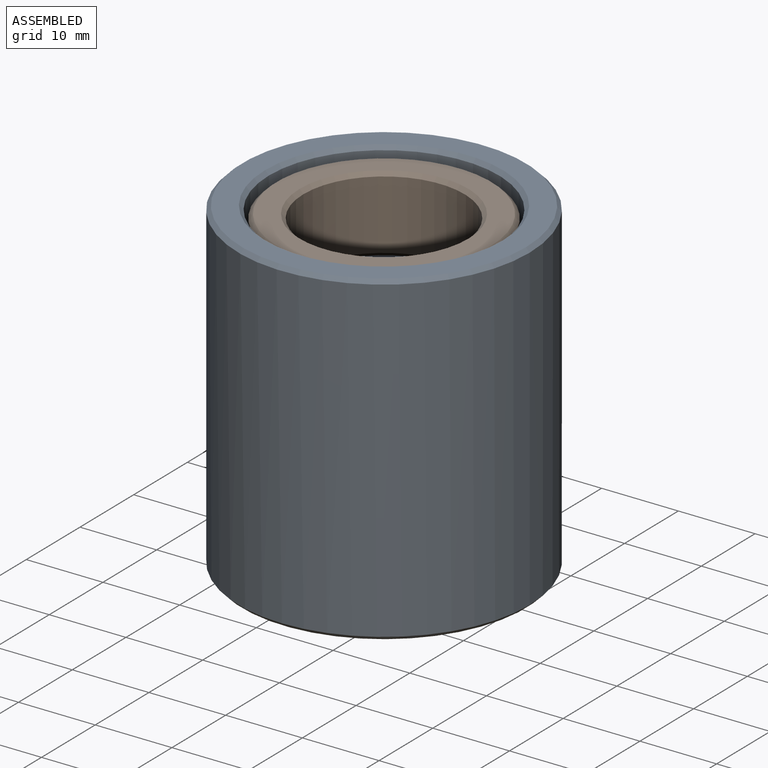
[diagram: assembled view]
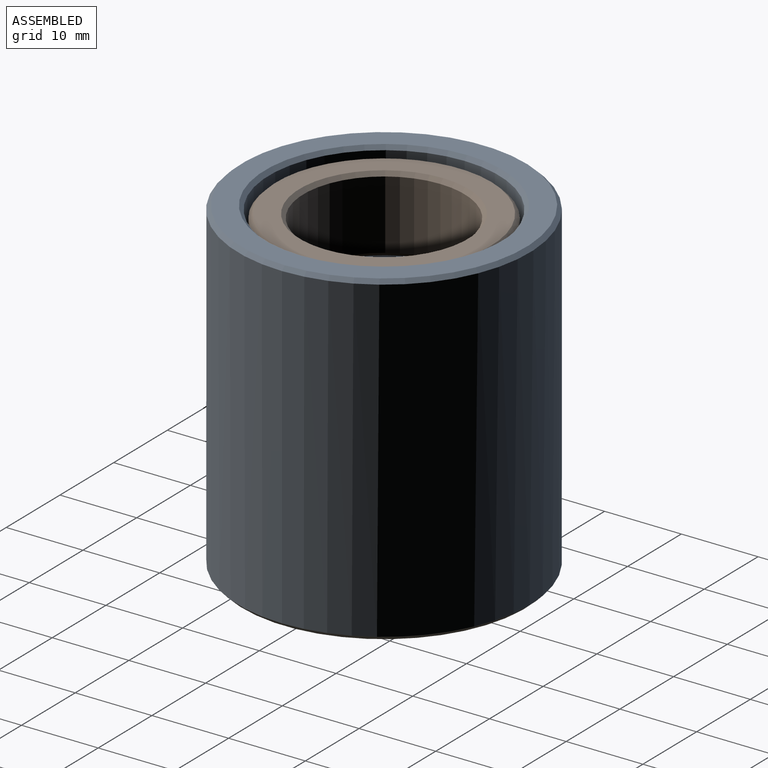
[diagram: assembled view, second angle]
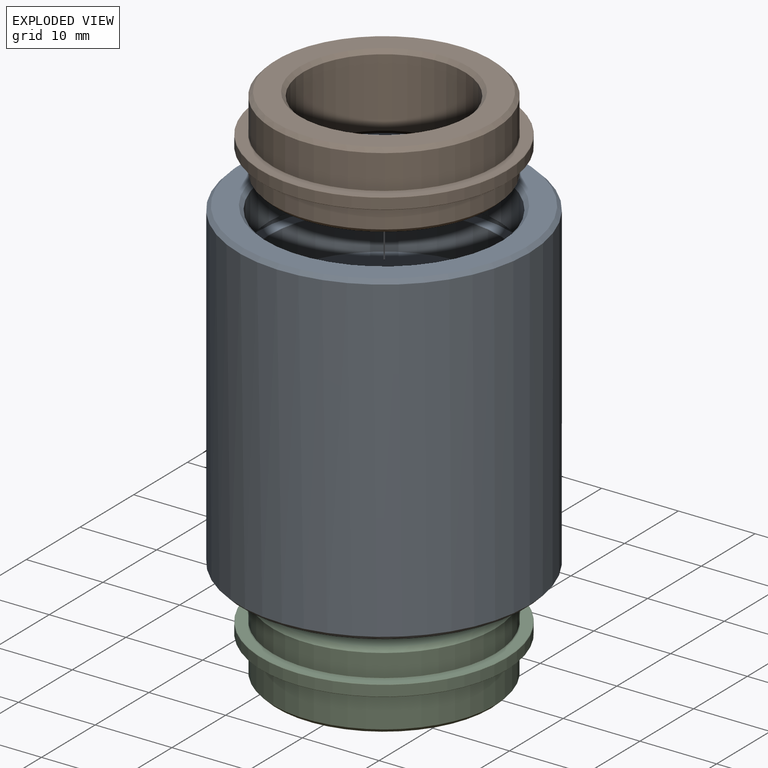
[diagram: exploded view]
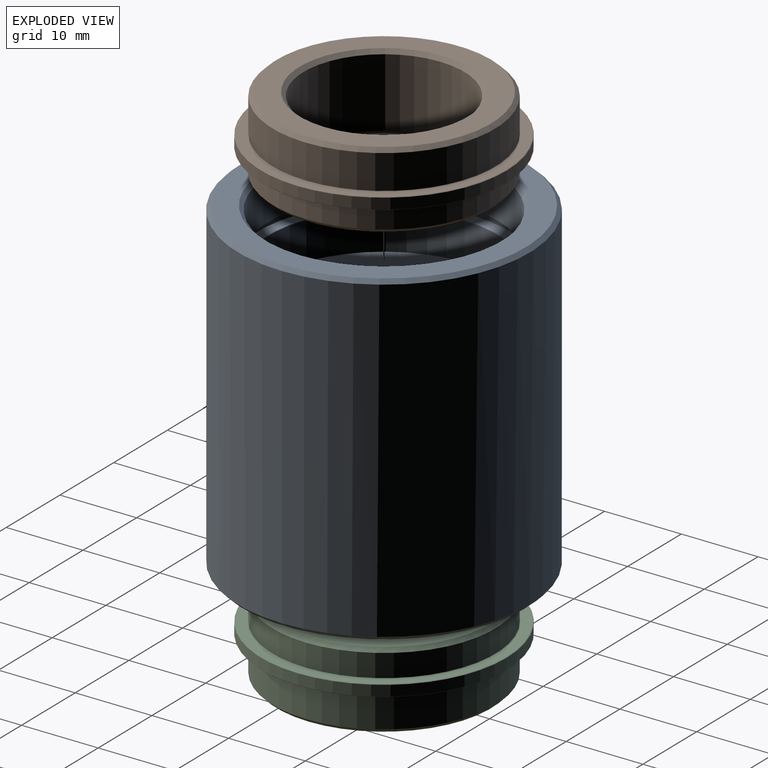
[diagram: exploded view, second angle]
ASSEMBLY  parts=3 mates=2
PART A: 28 faces, bbox 38x38x42.5 mm
  f0: plane 37x37mm, normal (0,0,1), area 320.4mm2, adj f20,f21
  f1: cylinder r=15mm len=30mm, axis (0,0,1), area 513.7mm2, adj f21,f22
  f2: plane 33x33mm, normal (0,0,-1), area 143.7mm2, adj f3,f22
  f3: cylinder r=16.5mm len=33mm, axis (0,0,1), area 155.5mm2, adj f2,f4
  f4: plane 33x33mm, normal (0,0,1), area 143.7mm2, adj f3,f23
  f5: cylinder r=15mm len=30mm, axis (0,0,1), area 461.8mm2, adj f23,f24
  f6: plane 29.9x29.9mm, normal (0,0,1), area 286.7mm2, adj f19,f24
  f7: cylinder r=11mm len=22mm, axis (0,0,1), area 1313.2mm2, adj f18,f19
  f8: plane 29.9x29.9mm, normal (0,0,-1), area 286.7mm2, adj f18,f27
  f9: cylinder r=15mm len=30mm, axis (0,0,1), area 320.4mm2, adj f26,f27
  f10: plane 33x33mm, normal (0,0,-1), area 143.7mm2, adj f11,f26
  f11: cylinder r=16.5mm len=33mm, axis (0,0,1), area 155.5mm2, adj f10,f12
  f12: plane 33x33mm, normal (0,0,1), area 143.7mm2, adj f11,f25
  f13: cylinder r=15mm len=30mm, axis (0,0,1), area 419.4mm2, adj f17,f25
  f14: plane 37x37mm, normal (0,0,-1), area 320.4mm2, adj f16,f17
  f15: cylinder r=19mm len=41.5mm, axis (0,0,1), area 4954.3mm2, adj f16,f20
  f16: cone r=19mm half-angle=45deg, axis (0,0,1), area 83.3mm2, adj f14,f15
  f17: cone r=15.5mm half-angle=45deg, axis (0,0,-1), area 67.8mm2, adj f13,f14
  f18: cone r=11.5mm half-angle=45deg, axis (0,0,-1), area 50mm2, adj f7,f8
  f19: cone r=11mm half-angle=45deg, axis (0,0,1), area 50mm2, adj f6,f7
  f20: cone r=18.5mm half-angle=45deg, axis (0,0,-1), area 83.3mm2, adj f0,f15
  f21: cone r=15mm half-angle=45deg, axis (0,0,1), area 67.8mm2, adj f0,f1
  f22: cone r=15.05mm half-angle=45deg, axis (0,0,-1), area 6.7mm2, adj f1,f2
  f23: cone r=15mm half-angle=45deg, axis (0,0,1), area 6.7mm2, adj f4,f5
  f24: cone r=14.95mm half-angle=45deg, axis (0,0,1), area 6.7mm2, adj f5,f6
  f25: cone r=15mm half-angle=45deg, axis (0,0,1), area 6.7mm2, adj f12,f13
  f26: cone r=15.05mm half-angle=45deg, axis (0,0,-1), area 6.7mm2, adj f9,f10
  f27: cone r=15mm half-angle=45deg, axis (0,0,-1), area 6.7mm2, adj f8,f9
PART B: 16 faces, bbox 32x32x10 mm
  f0: plane 28x28mm, normal (0,0,1), area 235.6mm2, adj f13,f14
  f1: cylinder r=10.5mm len=21mm, axis (0,0,1), area 593.8mm2, adj f12,f13
  f2: plane 28x28mm, normal (0,0,-1), area 235.6mm2, adj f12,f15
  f3: cylinder r=14.5mm len=29mm, axis (0,0,1), area 268.8mm2, adj f11,f15
  f4: plane 31.9x31.9mm, normal (0,0,-1), area 134.1mm2, adj f10,f11
  f5: cylinder r=16mm len=32mm, axis (0,0,1), area 140.7mm2, adj f9,f10
  f6: plane 31.9x31.9mm, normal (0,0,1), area 134.1mm2, adj f8,f9
  f7: cylinder r=14.5mm len=29mm, axis (0,0,1), area 405.4mm2, adj f8,f14
  f8: cone r=14.5mm half-angle=45deg, axis (0,0,-1), area 6.5mm2, adj f6,f7
  f9: cone r=15.95mm half-angle=45deg, axis (0,0,-1), area 7.1mm2, adj f5,f6
  f10: cone r=16mm half-angle=45deg, axis (0,0,1), area 7.1mm2, adj f4,f5
  f11: cone r=14.55mm half-angle=45deg, axis (0,0,1), area 6.5mm2, adj f3,f4
  f12: cone r=11mm half-angle=45deg, axis (0,0,-1), area 47.8mm2, adj f1,f2
  f13: cone r=10.5mm half-angle=45deg, axis (0,0,1), area 47.8mm2, adj f0,f1
  f14: cone r=14mm half-angle=45deg, axis (0,0,-1), area 63.3mm2, adj f0,f7
  f15: cone r=14.5mm half-angle=45deg, axis (0,0,1), area 63.3mm2, adj f2,f3
PART C: same geometry as B
PLACE A t=(19.51,15.91,-6.78)mm
PLACE B t=(19.51,15.91,6.08)mm
PLACE C rot(axis=(1,0,0),180deg) t=(19.51,15.91,8.86)mm
MATE fastened A.f1 <-> B.f1  axis (0,0,1) through (19.51,15.91,21.72)mm
MATE fastened C.f1 <-> A.f1  axis (0,0,-1) through (19.51,15.91,-13.28)mm
